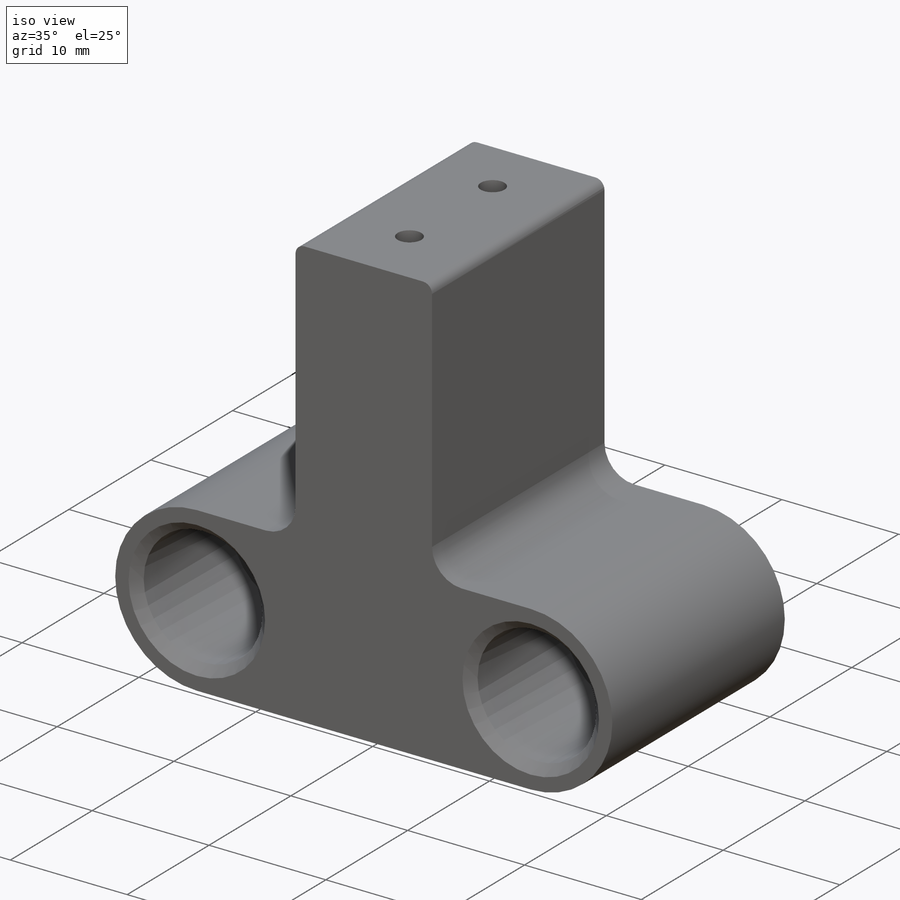
[diagram: iso view]
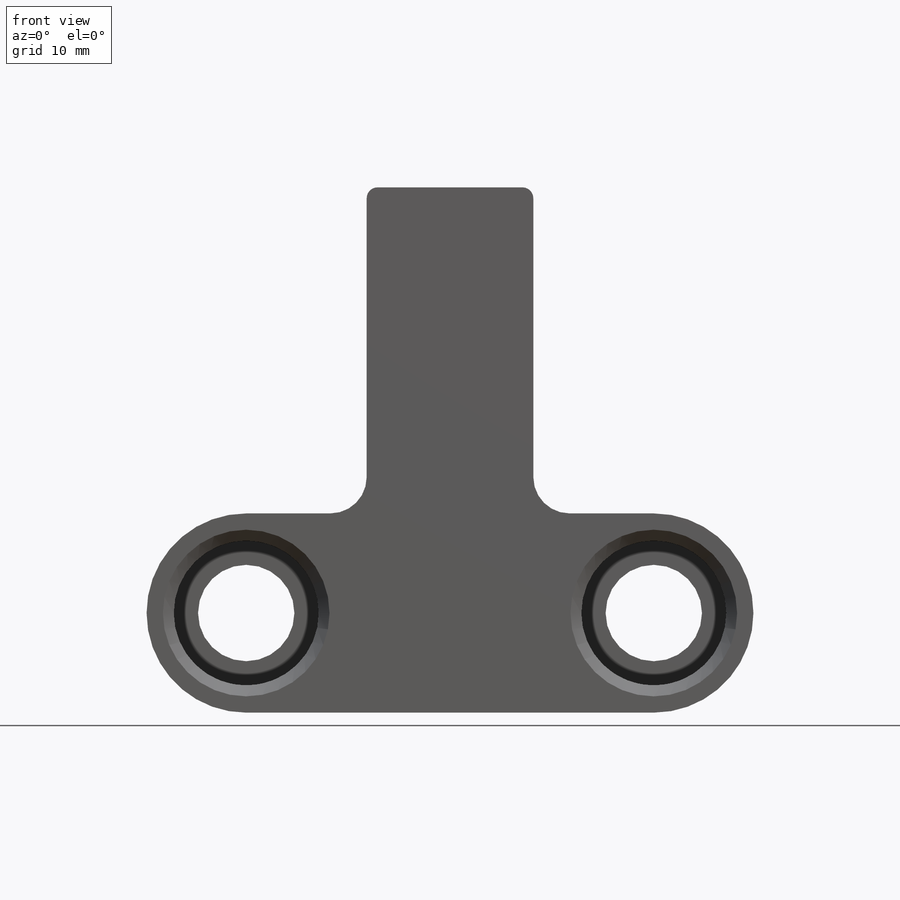
[diagram: front view]
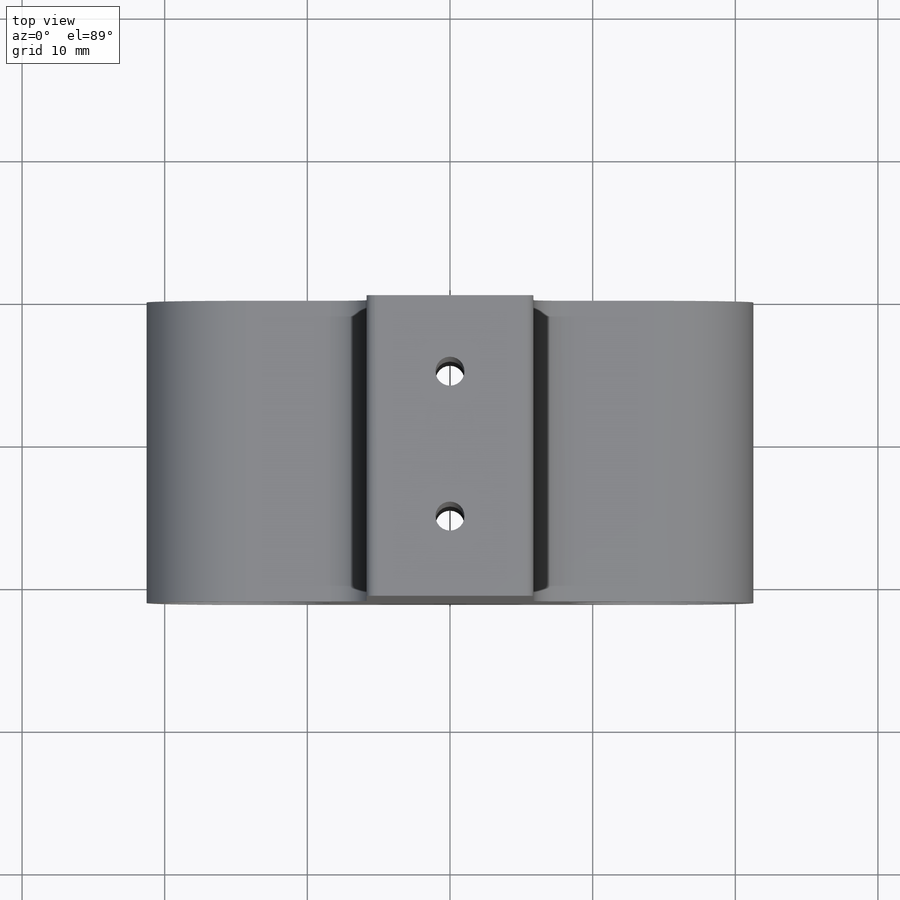
[diagram: top view]
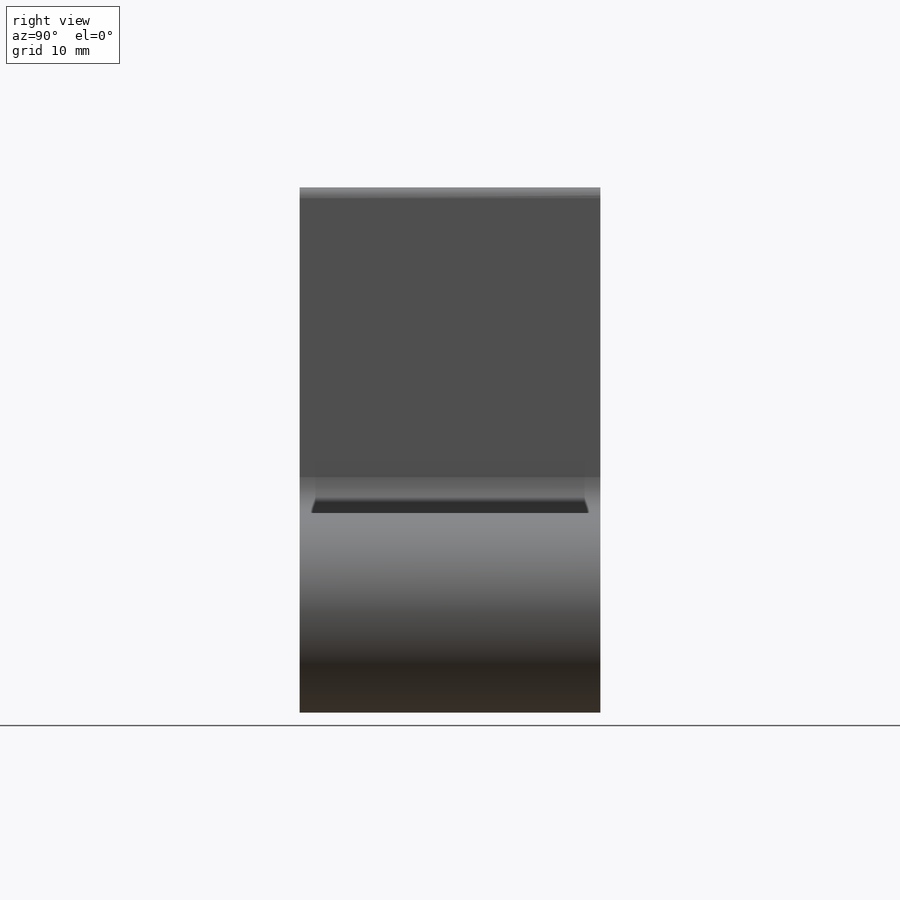
[diagram: right view]
SOLIDWORKS PART (.sldprt)
format: sldprt  version: not decoded by parser v0  size: 729,088 bytes
history: native  units: mm
features: sketch x9, cut_extrude x6, fillet x2, material x1, extrude x1, hole x1, chamfer x1 (+12 scaffold rows collapsed)
feature tree (33):
  scaffold x12  (default folders/planes/origin — collapsed)
  material  "Delrin 2700 NC010, Low Viscosity Acetal Copolymer (SS)"
  sketch  "Sketch1"  dims[D4=2.54mm D5=2.54mm D1=19.05mm D2=5.842mm D3=5.842mm D6=28.575mm D7=14.2875mm D8=9.525mm D9=9.525mm D10=2.032mm]
  extrude  "Boss-Extrude1"  Depth=25.4mm
  hole  "CSK for 1/4 Flat Head Machine Screw1"  Diameter=6.7564mm Depth=25.4mm
  sketch  "Sketch3"
  sketch  "Sketch2"  dims[hole-wizard template sketch: 55 standard entries collapsed; hole parameters kept: c17.Thru Hole Depth=25.4mm c17.Near C'Sink Dia.=~13.319404mm c17.D4=~3.666174mm c17.Near C'Sink Angle=82.0deg]
  sketch  "Sketch4"  dims[c1.D1=2.032mm c1.D2=7.62mm c1.D3=9.906mm c1.D4=9.906mm c1.D5=9.525mm c1.D6=10.414mm c1.D7=5.08mm c2.D2=5.08mm]
  cut_extrude  "Cut-Extrude1"  [1 undecoded]
  sketch  "Sketch5"  dims[D1=21.082mm]
  cut_extrude  "Cut-Extrude2"  [1 undecoded]
  fillet  "Fillet1"  Radius=0.762mm
  sketch  "Sketch8"  dims[D1=5.08mm D2=5.08mm]
  cut_extrude  "Cut-Extrude3"  [1 undecoded]
  sketch  "Sketch9"  dims[D1=10.16mm D2=14.2875mm]
  cut_extrude  "Cut-Extrude4"  Depth=9.525mm
  chamfer  "Chamfer1"  Distance=0.762mm Angle=45deg
  sketch  "Sketch10"
  cut_extrude  "Cut-Extrude5"  Depth=2.54mm
  sketch  "Sketch11"
  cut_extrude  "Cut-Extrude6"  [1 undecoded]
  fillet  "Fillet3"  Radius=2.54mm
decode coverage: 13 of 20 modeling features carry decoded parameters
note: ~ marks probable driven/reference dimensions
note: 4 parameter values undecoded
summary: no parameter record found for 4 features
note: suppression state not decoded; provenance and decode notes live in map.json
